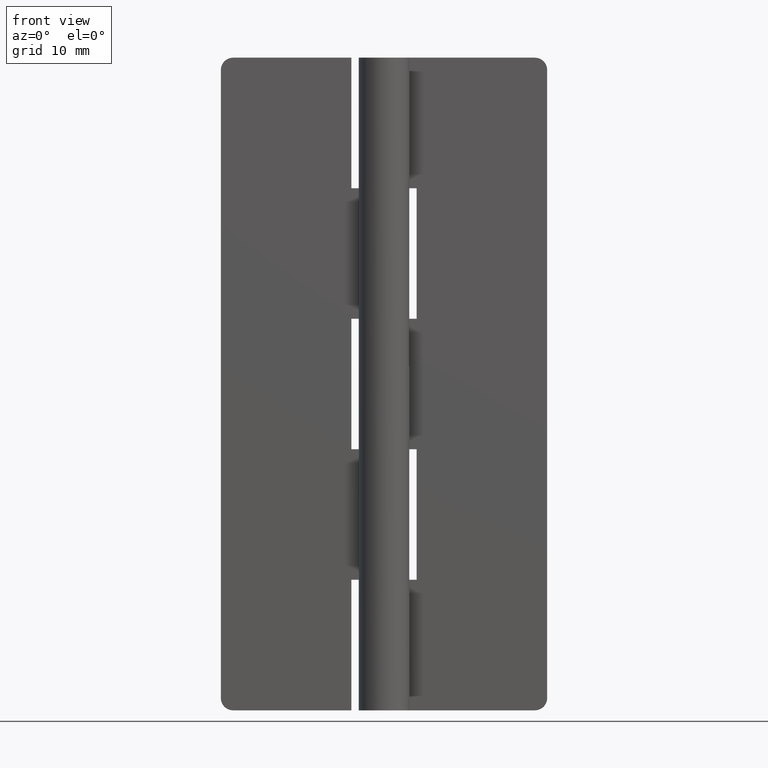
[diagram: clean part render]
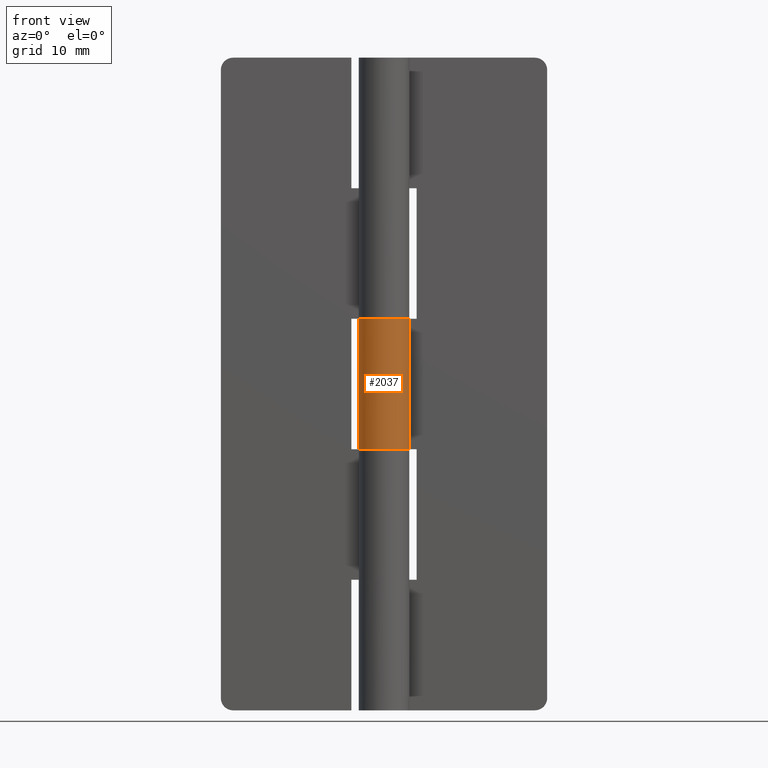
[diagram: same view with one face highlighted and labeled with its STEP entity id]
A machine part, front view. The second image highlights one B-rep face of the part: STEP entity #2037.
In plain terms, the highlighted face is a freeform B-spline surface patch.
Its self-contained STEP definition (entity closure, byte-faithful):
#1114=CARTESIAN_POINT('',(0.003521362805218,3.099998000000000,32.0));
#1115=VERTEX_POINT('',#1114);
#1121=CARTESIAN_POINT('',(0.003521362805218,3.099998000000000,47.999992999999897));
#1122=VERTEX_POINT('',#1121);
#1123=CARTESIAN_POINT('',(0.003521362805218,3.099998000000000,47.999992999999897));
#1124=CARTESIAN_POINT('',(0.003521362805218,3.099998000000000,32.0));
#1125=QUASI_UNIFORM_CURVE('',1,(#1123,#1124),.UNSPECIFIED.,.F.,.U.);
#1126=EDGE_CURVE('',#1122,#1115,#1125,.T.);
#1648=CARTESIAN_POINT('',(2.739981751764055,1.450000000000000,32.0));
#1649=VERTEX_POINT('',#1648);
#1650=CARTESIAN_POINT('',(-1.599219232555312,-2.655654939470992,32.0));
#1651=VERTEX_POINT('',#1650);
#1652=CARTESIAN_POINT('',(2.739981751764055,1.450000000000000,32.0));
#1653=CARTESIAN_POINT('',(2.897206292321363,1.153302848486616,31.999999999999940));
#1654=CARTESIAN_POINT('',(3.093403291563289,0.568680521890558,32.000000000000043));
#1655=CARTESIAN_POINT('',(3.116682688355915,-0.214234315357863,32.000000000000057));
#1656=CARTESIAN_POINT('',(3.005192835160768,-0.814596173562391,31.999999999999972));
#1657=CARTESIAN_POINT('',(2.784011230168015,-1.428736646245035,32.000000000000107));
#1658=CARTESIAN_POINT('',(2.435256505650113,-1.961617681889883,32.000000000000007));
#1659=CARTESIAN_POINT('',(1.950844171358156,-2.429204533337169,31.999999999999890));
#1660=CARTESIAN_POINT('',(1.496755800181456,-2.736746305425900,32.000000000000270));
#1661=CARTESIAN_POINT('',(0.876247861254589,-3.000873549048657,31.999999999999559));
#1662=CARTESIAN_POINT('',(0.126305590732703,-3.136612199207535,32.000000000000192));
#1663=CARTESIAN_POINT('',(-0.760026795251963,-3.051859220513769,31.999999999999940));
#1664=CARTESIAN_POINT('',(-1.329620023606571,-2.818187391127065,31.999999999999989));
#1665=CARTESIAN_POINT('',(-1.599219232555312,-2.655654939470992,32.0));
#1666=B_SPLINE_CURVE_WITH_KNOTS('',3,(#1652,#1653,#1654,#1655,#1656,#1657,#1658,#1659,#1660,#1661,#1662,#1663,#1664,#1665),.UNSPECIFIED.,.F.,.U.,(4,1,1,1,1,1,1,1,1,1,1,4),(0.000000054595248,1.007316758892771,1.825813140121082,2.329502041962480,2.833178572007663,3.777559587738758,4.218255432232068,4.847823653021672,5.414471869020990,6.232966292189754,7.114415766257668,8.058779530500642),.UNSPECIFIED.);
#1667=EDGE_CURVE('',#1649,#1651,#1666,.T.);
#1669=CARTESIAN_POINT('',(0.0,3.099998000000000,32.0));
#1670=VERTEX_POINT('',#1669);
#1671=CARTESIAN_POINT('',(-1.599219232555312,-2.655654939470992,32.0));
#1672=CARTESIAN_POINT('',(-1.886995773447689,-2.482608439157501,31.999999999999950));
#1673=CARTESIAN_POINT('',(-2.307973979223821,-2.124287894147538,32.000000000000092));
#1674=CARTESIAN_POINT('',(-2.726226044255110,-1.515861879425353,31.999999999999989));
#1675=CARTESIAN_POINT('',(-2.952668343944061,-0.993859034767599,32.000000000000028));
#1676=CARTESIAN_POINT('',(-3.100847345751315,-0.379804941373262,31.999999999999979));
#1677=CARTESIAN_POINT('',(-3.118872384936629,0.382087988872153,32.000000000000007));
#1678=CARTESIAN_POINT('',(-2.905254603161469,1.182043057593377,32.000000000000007));
#1679=CARTESIAN_POINT('',(-2.513652687397499,1.858175584278474,31.999999999999950));
#1680=CARTESIAN_POINT('',(-2.082594417448085,2.322445383231058,32.000000000000313));
#1681=CARTESIAN_POINT('',(-1.555015065116881,2.706799041618059,31.999999999999812));
#1682=CARTESIAN_POINT('',(-0.881340237730101,3.012933422101555,32.000000000000163));
#1683=CARTESIAN_POINT('',(-0.314795353130531,3.100150615075858,31.999999999999929));
#1684=CARTESIAN_POINT('',(0.0,3.099998000000000,32.0));
#1685=B_SPLINE_CURVE_WITH_KNOTS('',3,(#1671,#1672,#1673,#1674,#1675,#1676,#1677,#1678,#1679,#1680,#1681,#1682,#1683,#1684),.UNSPECIFIED.,.F.,.U.,(4,1,1,1,1,1,1,1,1,1,1,4),(0.000000054107086,1.007316700530336,1.636929148911601,2.203577837623859,2.707249678003763,3.525740028978578,4.470071289901963,5.162650644568680,5.855202662931882,6.358882619131106,7.114415358186159,8.058779067762560),.UNSPECIFIED.);
#1686=EDGE_CURVE('',#1651,#1670,#1685,.T.);
#1688=CARTESIAN_POINT('',(0.003521362805218,3.099998000000000,32.0));
#1689=CARTESIAN_POINT('',(0.0,3.099998000000000,32.0));
#1690=QUASI_UNIFORM_CURVE('',1,(#1688,#1689),.UNSPECIFIED.,.F.,.U.);
#1691=EDGE_CURVE('',#1115,#1670,#1690,.T.);
#1798=CARTESIAN_POINT('',(0.0,3.099998000000000,47.999992999999897));
#1799=VERTEX_POINT('',#1798);
#1800=CARTESIAN_POINT('',(-1.599217508353684,-2.655655977773081,47.999992999999911));
#1801=VERTEX_POINT('',#1800);
#1802=CARTESIAN_POINT('',(0.0,3.099998000000000,47.999992999999897));
#1803=CARTESIAN_POINT('',(-0.377789483737828,3.100318828598081,47.999992999999840));
#1804=CARTESIAN_POINT('',(-0.986142528731778,2.987333516032982,47.999993000000082));
#1805=CARTESIAN_POINT('',(-1.680140093146891,2.628313539865504,47.999992999999733));
#1806=CARTESIAN_POINT('',(-2.125669938801620,2.275178655686927,47.999993000000110));
#1807=CARTESIAN_POINT('',(-2.508248466443742,1.854655532459147,47.999992999999847));
#1808=CARTESIAN_POINT('',(-2.792952782468171,1.385205927104154,47.999992999999662));
#1809=CARTESIAN_POINT('',(-3.001786837711705,0.834378032964335,47.999993000000451));
#1810=CARTESIAN_POINT('',(-3.121220733710084,0.212925082720600,47.999992999999762));
#1811=CARTESIAN_POINT('',(-3.091618487525792,-0.463839672153093,47.999992999998163));
#1812=CARTESIAN_POINT('',(-2.924596013203378,-1.073630221896209,47.999993000000750));
#1813=CARTESIAN_POINT('',(-2.664669436825507,-1.626177298716483,47.999992999999343));
#1814=CARTESIAN_POINT('',(-2.246379664113793,-2.184570734502676,47.999993000000153));
#1815=CARTESIAN_POINT('',(-1.832975122712080,-2.514993970784872,47.999992999999890));
#1816=CARTESIAN_POINT('',(-1.599217508353684,-2.655655977773081,47.999992999999911));
#1817=B_SPLINE_CURVE_WITH_KNOTS('',3,(#1802,#1803,#1804,#1805,#1806,#1807,#1808,#1809,#1810,#1811,#1812,#1813,#1814,#1815,#1816),.UNSPECIFIED.,.F.,.U.,(4,1,1,1,1,1,1,1,1,1,1,1,4),(0.000000054589251,1.133239672109037,1.825813396034412,2.329502368501404,2.833178969192431,3.525740727440543,3.966431671419781,4.595983965754101,5.414472627937145,5.981124064215084,6.484811493511369,7.240346653406640,8.058780660094422),.UNSPECIFIED.);
#1818=EDGE_CURVE('',#1799,#1801,#1817,.T.);
#1820=CARTESIAN_POINT('',(2.739981751764055,1.450000000000000,47.999992999999897));
#1821=VERTEX_POINT('',#1820);
#1822=CARTESIAN_POINT('',(-1.599217508353684,-2.655655977773081,47.999992999999911));
#1823=CARTESIAN_POINT('',(-1.383509126229020,-2.785621632293716,47.999992999999890));
#1824=CARTESIAN_POINT('',(-0.997416813288596,-2.958014568741813,47.999992999999932));
#1825=CARTESIAN_POINT('',(-0.421703036206981,-3.084956413076286,47.999992999999911));
#1826=CARTESIAN_POINT('',(0.230074785852450,-3.120757619584774,47.999993000000053));
#1827=CARTESIAN_POINT('',(0.898570604662669,-2.999812159037986,47.999992999999733));
#1828=CARTESIAN_POINT('',(1.513573378355308,-2.723063011465587,47.999993000000281));
#1829=CARTESIAN_POINT('',(1.966841288499926,-2.416105519520178,47.999992999999257));
#1830=CARTESIAN_POINT('',(2.345826370076177,-2.050168161422418,47.999993000000202));
#1831=CARTESIAN_POINT('',(2.668444772447352,-1.607905965298051,47.999992999999961));
#1832=CARTESIAN_POINT('',(2.947866886546332,-1.040767673134029,47.999992999998987));
#1833=CARTESIAN_POINT('',(3.124833064909944,-0.299466700262130,47.999993000000330));
#1834=CARTESIAN_POINT('',(3.089201265582518,0.590191223708108,47.999992999999762));
#1835=CARTESIAN_POINT('',(2.887365169860860,1.171830675075962,47.999992999999940));
#1836=CARTESIAN_POINT('',(2.739981751764055,1.450000000000000,47.999992999999897));
#1837=B_SPLINE_CURVE_WITH_KNOTS('',3,(#1822,#1823,#1824,#1825,#1826,#1827,#1828,#1829,#1830,#1831,#1832,#1833,#1834,#1835,#1836),.UNSPECIFIED.,.F.,.U.,(4,1,1,1,1,1,1,1,1,1,1,1,4),(0.000000054748257,0.755503122181923,1.259170415774324,1.762851175616785,2.707249636936998,3.273914789400623,3.777559311976923,4.344162751832589,4.847823297917110,5.414471472578061,6.232965835810663,7.114415245143253,8.058778940349455),.UNSPECIFIED.);
#1838=EDGE_CURVE('',#1801,#1821,#1837,.T.);
#1895=CARTESIAN_POINT('',(0.003521362805218,3.099998000000000,47.999992999999897));
#1896=CARTESIAN_POINT('',(0.0,3.099998000000000,47.999992999999897));
#1897=QUASI_UNIFORM_CURVE('',1,(#1895,#1896),.UNSPECIFIED.,.F.,.U.);
#1898=EDGE_CURVE('',#1122,#1799,#1897,.T.);
#2001=CARTESIAN_POINT('',(0.087215809709336,3.098772886569253,48.399992824999913));
#2002=CARTESIAN_POINT('',(0.087215809709336,3.098772886569253,31.590000179375000));
#2003=CARTESIAN_POINT('',(-3.694254208917621,3.205203393624343,48.399992824999913));
#2004=CARTESIAN_POINT('',(-3.694254208917621,3.205203393624343,31.590000179375004));
#2005=CARTESIAN_POINT('',(-3.055487706738079,-0.523445196723088,48.399992824999913));
#2006=CARTESIAN_POINT('',(-3.055487706738079,-0.523445196723088,31.590000179375000));
#2007=CARTESIAN_POINT('',(-2.416721204558536,-4.252093787070518,48.399992824999913));
#2008=CARTESIAN_POINT('',(-2.416721204558536,-4.252093787070518,31.590000179375004));
#2009=CARTESIAN_POINT('',(1.113692359485484,-2.893041535896720,48.399992824999913));
#2010=CARTESIAN_POINT('',(1.113692359485484,-2.893041535896720,31.590000179375000));
#2011=CARTESIAN_POINT('',(4.644105923529503,-1.533989284722922,48.399992824999913));
#2012=CARTESIAN_POINT('',(4.644105923529503,-1.533989284722922,31.590000179375004));
#2013=CARTESIAN_POINT('',(2.617769613640669,1.660506624467238,48.399992824999913));
#2014=CARTESIAN_POINT('',(2.617769613640669,1.660506624467238,31.590000179375000));
#2022=(BOUNDED_SURFACE()B_SPLINE_SURFACE(1,2,((#2001,#2003,#2005,#2007,#2009,#2011,#2013),(#2002,#2004,#2006,#2008,#2010,#2012,#2014)),.UNSPECIFIED.,.F.,.F.,.U.)B_SPLINE_SURFACE_WITH_KNOTS((2,2),(3,2,2,3),(0.0,16.809992645624920),(0.0,5.870281529289078,11.740563058578161,17.610844587867231),.UNSPECIFIED.)GEOMETRIC_REPRESENTATION_ITEM()RATIONAL_B_SPLINE_SURFACE(((1.0,0.633830967398710,1.0,0.633830967398710,1.0,0.633830967398710,1.0),(1.0,0.633830967398710,1.0,0.633830967398710,1.0,0.633830967398710,1.0)))REPRESENTATION_ITEM('')SURFACE());
#2023=ORIENTED_EDGE('',*,*,#1686,.F.);
#2024=ORIENTED_EDGE('',*,*,#1667,.F.);
#2025=CARTESIAN_POINT('',(2.739981751764055,1.450000000000000,47.999992999999897));
#2026=CARTESIAN_POINT('',(2.739981751764055,1.450000000000000,32.0));
#2027=QUASI_UNIFORM_CURVE('',1,(#2025,#2026),.UNSPECIFIED.,.F.,.U.);
#2028=EDGE_CURVE('',#1821,#1649,#2027,.T.);
#2029=ORIENTED_EDGE('',*,*,#2028,.F.);
#2030=ORIENTED_EDGE('',*,*,#1838,.F.);
#2031=ORIENTED_EDGE('',*,*,#1818,.F.);
#2032=ORIENTED_EDGE('',*,*,#1898,.F.);
#2033=ORIENTED_EDGE('',*,*,#1126,.T.);
#2034=ORIENTED_EDGE('',*,*,#1691,.T.);
#2035=EDGE_LOOP('',(#2023,#2024,#2029,#2030,#2031,#2032,#2033,#2034));
#2036=FACE_OUTER_BOUND('',#2035,.T.);
#2037=ADVANCED_FACE('',(#2036),#2022,.T.);